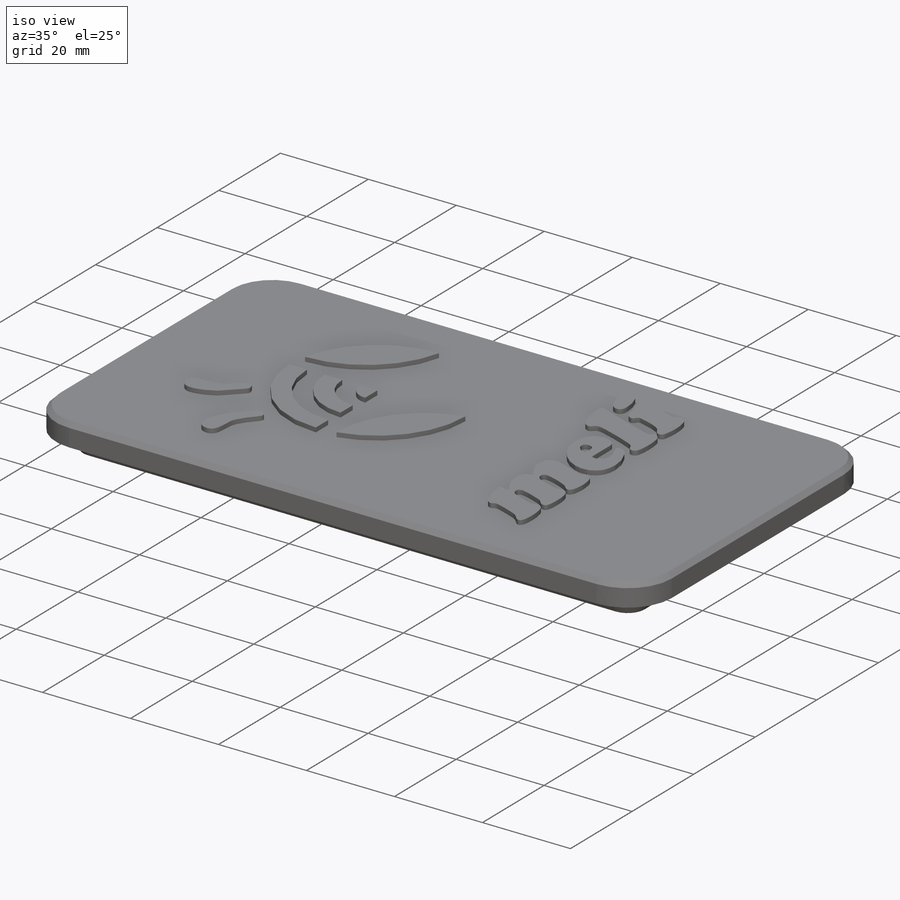
[diagram: iso view]
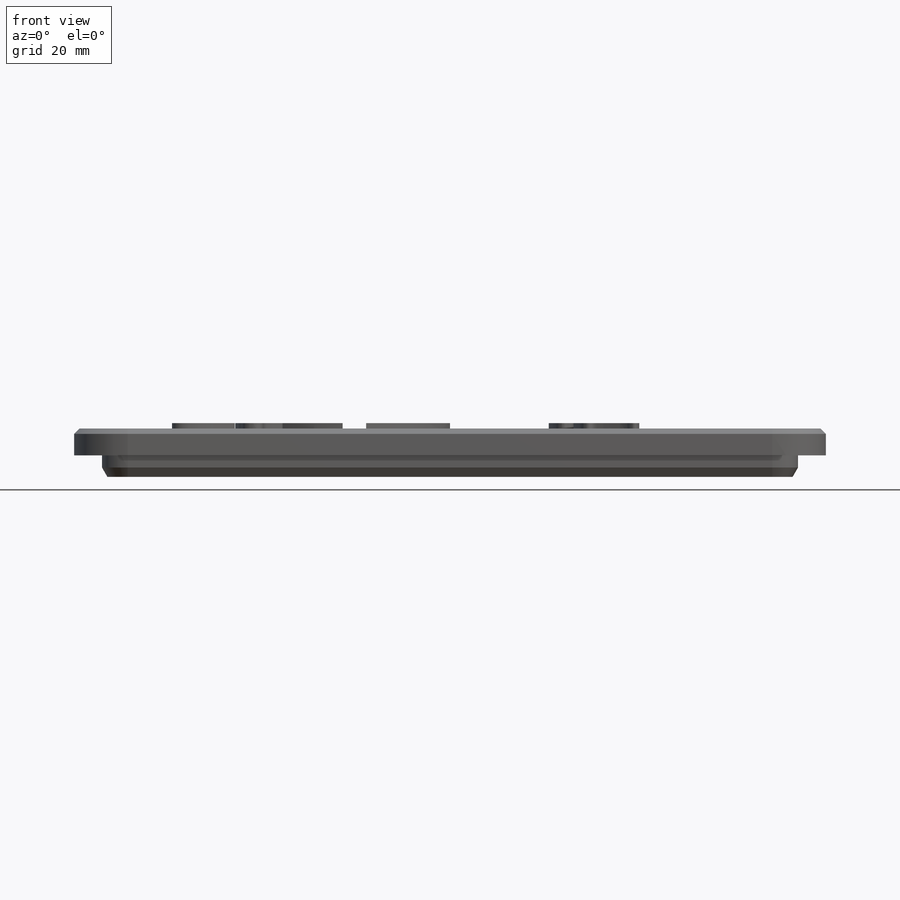
[diagram: front view]
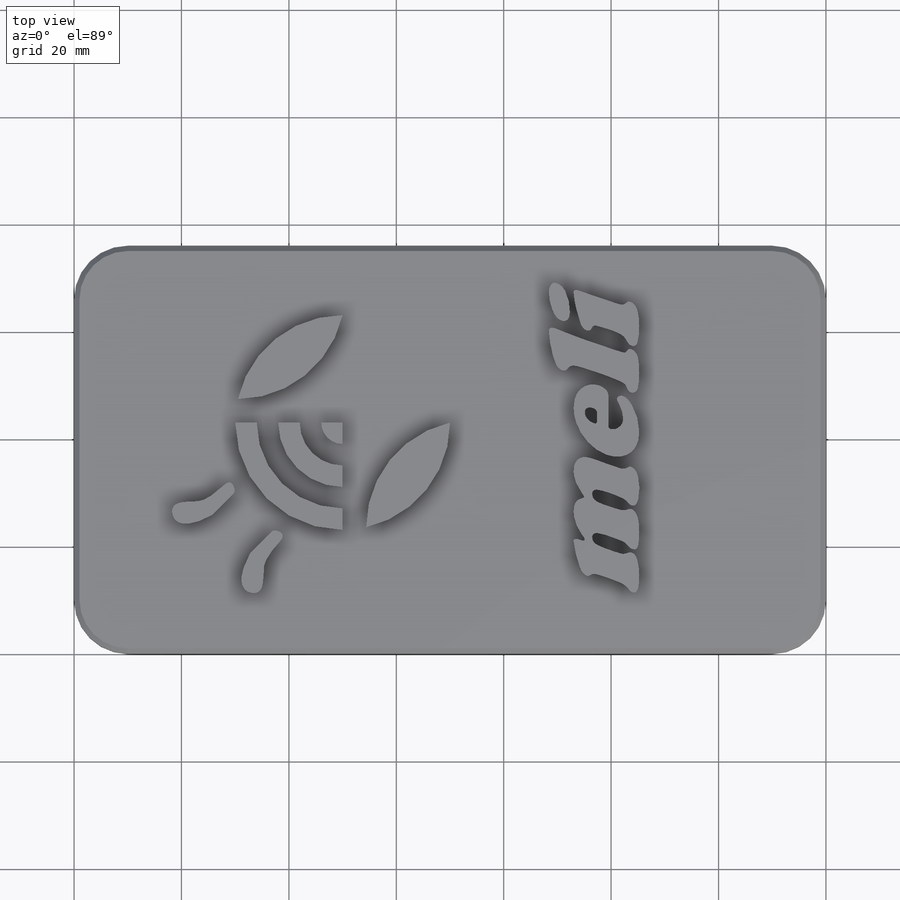
[diagram: top view]
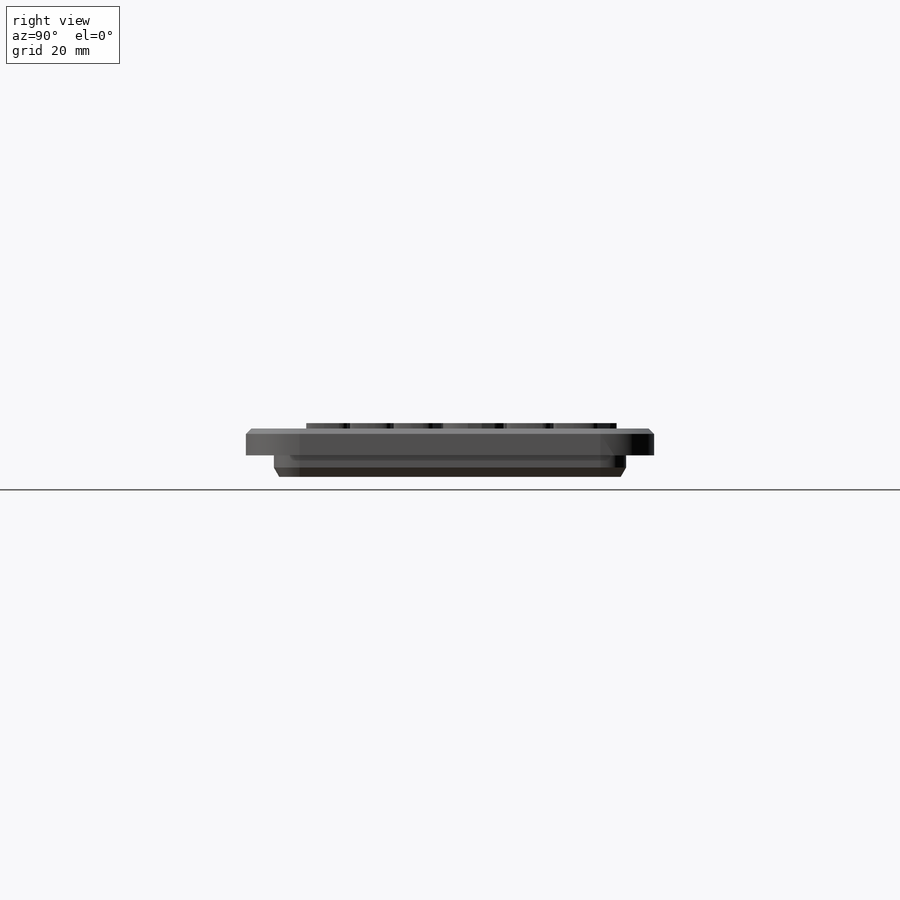
[diagram: right view]
SOLIDWORKS PART (.sldprt)
format: sldprt  version: not decoded by parser v0  size: 498,176 bytes
history: native  units: mm
features: sketch x4, extrude x4, chamfer x2, material x1, fillet x1 (+12 scaffold rows collapsed)
feature tree (24):
  scaffold x12  (default folders/planes/origin — collapsed)
  material  "Material <not specified>"
  sketch  "Sketch1"  dims[D1=140.0mm D2=76.0mm]
  extrude  "Boss-Extrude1"  Depth=5mm
  fillet  "Fillet1"  Radius=10mm
  sketch  "Sketch3"  dims[D1=5.2mm]
  extrude  "Boss-Extrude2"  Depth=4mm
  sketch  "Sketch4"  dims[D1=35.0mm]
  extrude  "Boss-Extrude3"  Depth=1mm
  sketch  "Sketch5"  dims[c1.D1=40.0mm c1.D2=40.0mm c1.D10=~5.31039mm c1.D9=~12.564787mm c2.D10=1.0mm c2.D11=1.0mm c2.D1=40.0mm c2.D4=1.0mm c2.D2=50.0mm c2.D7=25.0mm c2.D8=10.0mm c2.D9=~9.854766mm c3.D8=10.0mm c3.D9=10.0mm c4.D8=5.0mm c4.D9=20.0mm c4.D10=~7.827172mm c5.D8=20.0mm c5.D9=~2.580093mm c6.D8=20.0mm c6.D9=~7.131645mm c7.D9=5.0deg c7.D8=6.0mm c8.D9=20.0mm c8.D10=6.0mm c9.D10=4.0deg c10.D10=5.0mm c10.D2=25.0mm c10.D3=4.0mm c10.D4=4.0mm c10.D5=4.0mm c10.D6=4.0mm]
  extrude  "Boss-Extrude4"  Depth=1mm
  chamfer  "Chamfer1"  Distance=1mm Angle=60deg
  chamfer  "Chamfer2"  Distance=1mm Angle=45deg
decode coverage: 11 of 11 modeling features carry decoded parameters
note: ~ marks probable driven/reference dimensions
note: suppression state not decoded; provenance and decode notes live in map.json
